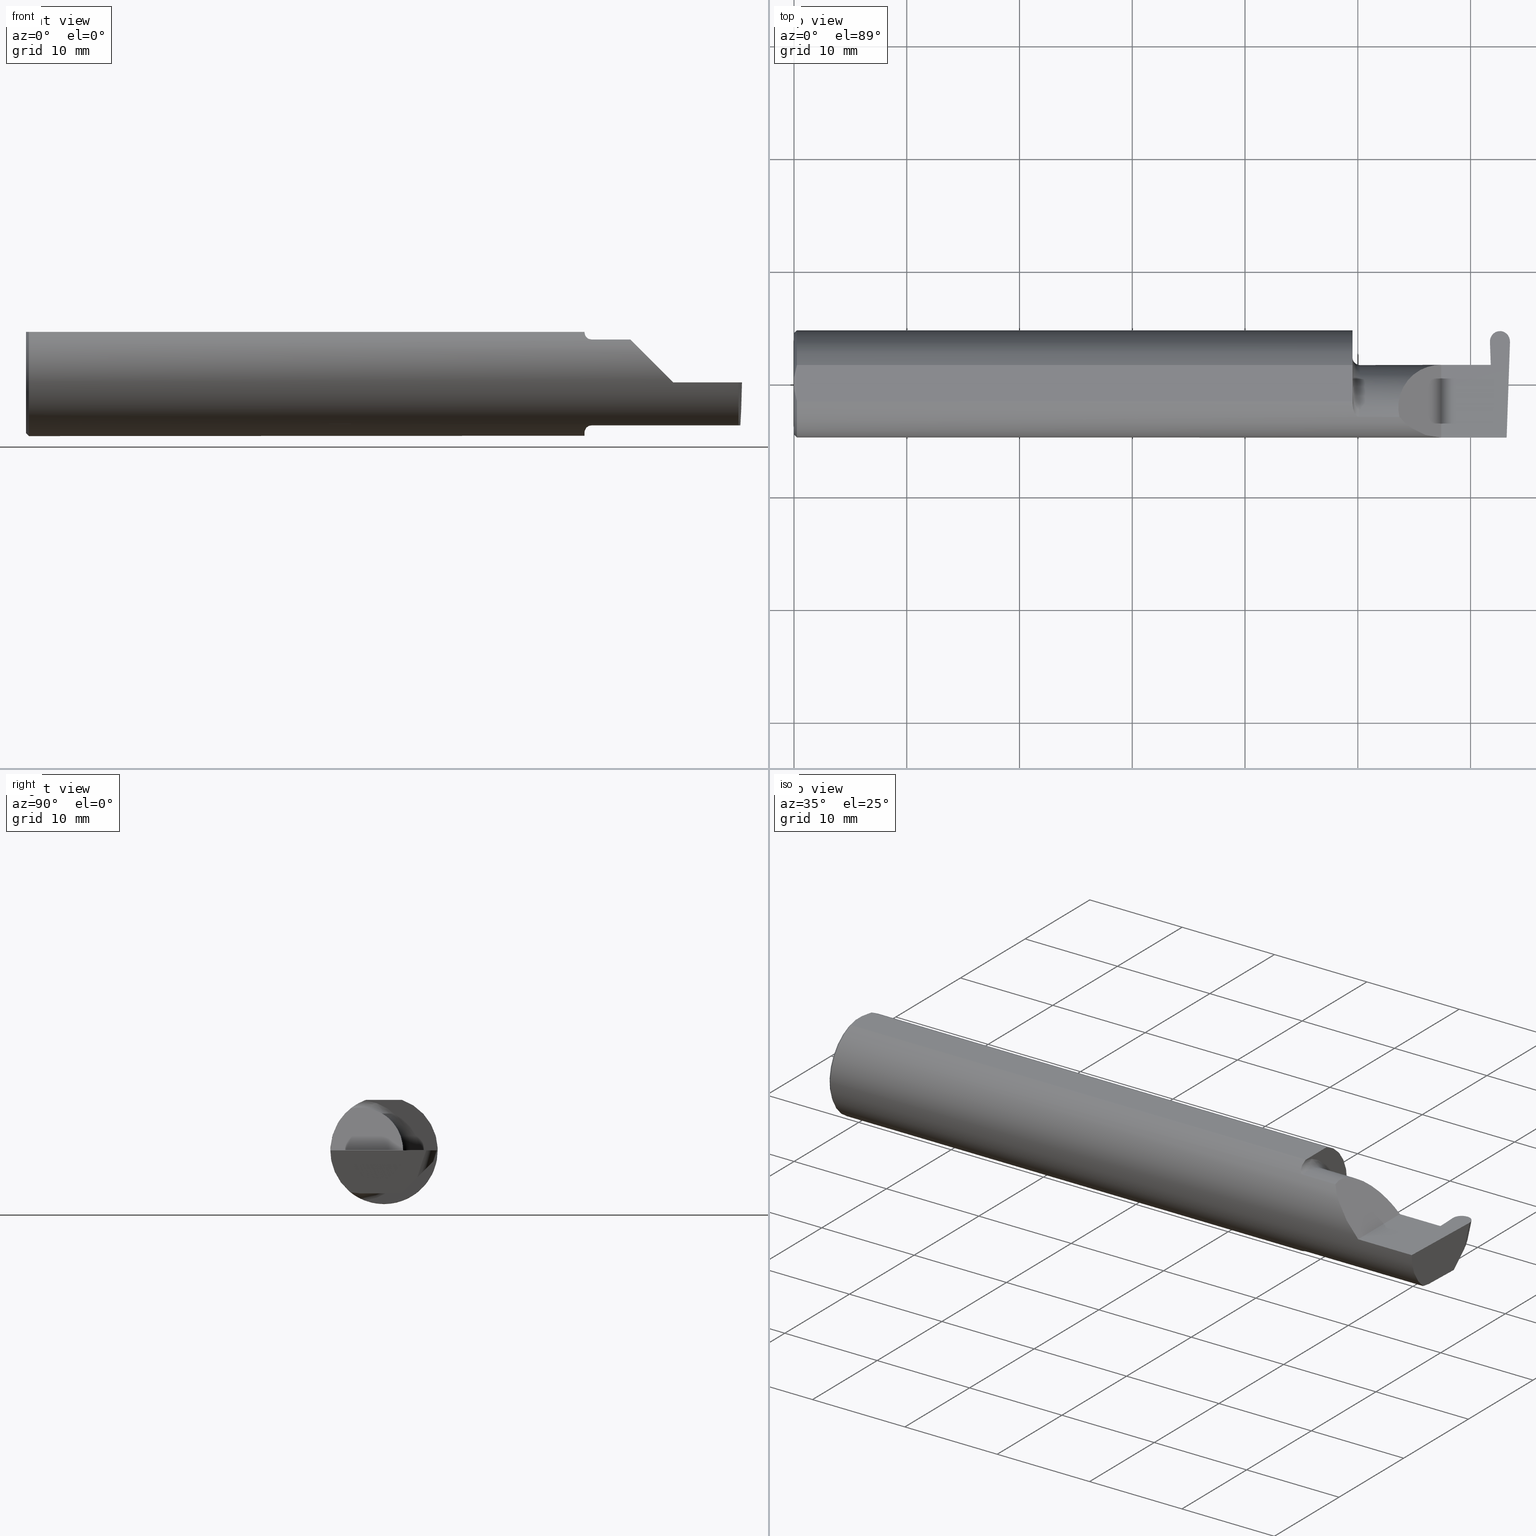
[diagram: canonical four-view strip — front | top / right | iso, engineering-drawing reading convention]
A machine part, canonical four-view strip (front | top / right | iso — engineering-drawing reading convention). The complete STEP part file that produces these views, byte-faithful:
ISO-10303-21;
HEADER;
FILE_DESCRIPTION (( 'STEP AP203' ),
    '1' );
FILE_NAME ('222176-GFR069-8.STEP',
    '2024-06-26T22:34:26',
    ( '' ),
    ( '' ),
    'SwSTEP 2.0',
    'SolidWorks 2024',
    '' );
FILE_SCHEMA (( 'CONFIG_CONTROL_DESIGN' ));
ENDSEC;

DATA;
#1 = EDGE_CURVE ( 'NONE', #362, #313, #595, .T. ) ;
#2 = CARTESIAN_POINT ( 'NONE',  ( 2.423538215936590134, 0.06658908270190941336, -0.003489949670254849888 ) ) ;
#3 = CARTESIAN_POINT ( 'NONE',  ( 2.090221225029926355, -0.01530148607434139371, 0.1697787749700724880 ) ) ;
#4 = ORIENTED_EDGE ( 'NONE', *, *, #648, .T. ) ;
#5 = CARTESIAN_POINT ( 'NONE',  ( 2.733184360054361939, -0.08335000000000006293, -0.1500000000000000500 ) ) ;
#6 = DIRECTION ( 'NONE',  ( 1.000000000000000000, 0.000000000000000000, 0.000000000000000000 ) ) ;
#7 = ORIENTED_EDGE ( 'NONE', *, *, #396, .T. ) ;
#8 = AXIS2_PLACEMENT_3D ( 'NONE', #61, #68, #385 ) ;
#9 = LENGTH_MEASURE_WITH_UNIT ( LENGTH_MEASURE( 0.02539999999999999897 ), #493 );
#10 = DIRECTION ( 'NONE',  ( 0.000000000000000000, -0.7071067811865516806, 0.7071067811865434649 ) ) ;
#11 = ADVANCED_FACE ( 'NONE', ( #236 ), #132, .F. ) ;
#12 = ORIENTED_EDGE ( 'NONE', *, *, #201, .T. ) ;
#13 =( BOUNDED_CURVE ( )  B_SPLINE_CURVE ( 3, ( #332, #488, #552, #105 ),
 .UNSPECIFIED., .F., .T. ) 
 B_SPLINE_CURVE_WITH_KNOTS ( ( 4, 4 ),
 ( 3.159045946109734437, 4.694935687864694174 ),
 .UNSPECIFIED. ) 
 CURVE ( )  GEOMETRIC_REPRESENTATION_ITEM ( )  RATIONAL_B_SPLINE_CURVE ( ( 1.000000000000000000, 0.8128932002257790446, 0.8128932002257790446, 1.000000000000000000 ) ) 
 REPRESENTATION_ITEM ( '' )  );
#14 = ADVANCED_FACE ( 'NONE', ( #344 ), #247, .T. ) ;
#15 = DIRECTION ( 'NONE',  ( 0.000000000000000000, -0.7071067811865433539, -0.7071067811865515695 ) ) ;
#16 = ORIENTED_EDGE ( 'NONE', *, *, #283, .F. ) ;
#17 = CARTESIAN_POINT ( 'NONE',  ( 2.432629151099980458, 0.1162741585162867242, -0.09402889302686344430 ) ) ;
#18 = DIRECTION ( 'NONE',  ( 1.000000000000000000, -0.000000000000000000, -0.000000000000000000 ) ) ;
#19 = CALENDAR_DATE ( 2024, 26, 6 ) ;
#20 = VECTOR ( 'NONE', #597, 39.37007874015748854 ) ;
#21 = APPROVAL ( #281, 'UNSPECIFIED' ) ;
#22 = ORIENTED_EDGE ( 'NONE', *, *, #447, .F. ) ;
#23 = EDGE_CURVE ( 'NONE', #539, #362, #72, .T. ) ;
#24 = CALENDAR_DATE ( 2024, 26, 6 ) ;
#25 = CARTESIAN_POINT ( 'NONE',  ( 2.733184360054361939, -0.08335000000000006293, -0.1500000000000000500 ) ) ;
#26 = ORIENTED_EDGE ( 'NONE', *, *, #272, .F. ) ;
#27 = APPROVAL_DATE_TIME ( #622, #21 ) ;
#28 = CARTESIAN_POINT ( 'NONE',  ( 0.000000000000000000, 0.000000000000000000, 0.000000000000000000 ) ) ;
#29 = EDGE_LOOP ( 'NONE', ( #685, #554, #479 ) ) ;
#30 = CARTESIAN_POINT ( 'NONE',  ( 2.489267684857003893, -0.08335000000000006293, -0.1500000000000000500 ) ) ;
#31 = DIRECTION ( 'NONE',  ( 0.000000000000000000, 0.000000000000000000, -1.000000000000000000 ) ) ;
#32 = AXIS2_PLACEMENT_3D ( 'NONE', #461, #626, #520 ) ;
#33 = EDGE_CURVE ( 'NONE', #284, #226, #578, .T. ) ;
#34 = LOCAL_TIME ( 15, 34, 26.00000000000000000, #137 ) ;
#35 = CARTESIAN_POINT ( 'NONE',  ( 0.000000000000000000, 0.06325108694718235836, 0.1763499999999999235 ) ) ;
#36 = CARTESIAN_POINT ( 'NONE',  ( 1.972161949849307927, -0.1172600179964061184, 0.1461167706989260351 ) ) ;
#37 = CARTESIAN_POINT ( 'NONE',  ( 2.260000000000000231, -0.1873499999999999888, 2.939152317953647352E-17 ) ) ;
#38 = CARTESIAN_POINT ( 'NONE',  ( 1.950353553376444671, -0.07868116735658677030, 0.1701139256562800572 ) ) ;
#39 = ORIENTED_EDGE ( 'NONE', *, *, #283, .T. ) ;
#40 = DIRECTION ( 'NONE',  ( 1.000000000000000000, 3.558239494867688555E-17, 0.000000000000000000 ) ) ;
#41 = DIRECTION ( 'NONE',  ( 3.558239494867688555E-17, -1.000000000000000000, 0.000000000000000000 ) ) ;
#42 = ORIENTED_EDGE ( 'NONE', *, *, #580, .F. ) ;
#43 = ADVANCED_FACE ( 'NONE', ( #436 ), #257, .F. ) ;
#44 = APPROVAL_PERSON_ORGANIZATION ( #130, #51, #670 ) ;
#45 = DIRECTION ( 'NONE',  ( -0.02739170151059973704, 0.3089010440752013587, 0.9506996579664918068 ) ) ;
#46 = CARTESIAN_POINT ( 'NONE',  ( 1.949999999999998845, 0.06655862405285710437, -0.005234924505583847532 ) ) ;
#47 = ORIENTED_EDGE ( 'NONE', *, *, #447, .T. ) ;
#48 = FACE_OUTER_BOUND ( 'NONE', #392, .T. ) ;
#49 = DIRECTION ( 'NONE',  ( -0.01299916717458325655, 0.7070470357949164564, 0.7070470357949245610 ) ) ;
#50 = EDGE_LOOP ( 'NONE', ( #175, #399, #329, #334 ) ) ;
#51 = APPROVAL ( #187, 'UNSPECIFIED' ) ;
#52 = CARTESIAN_POINT ( 'NONE',  ( 2.498896154976211204, 0.1483409487800855797, -0.06196210276306426956 ) ) ;
#53 = CARTESIAN_POINT ( 'NONE',  ( 2.432719784034706123, 0.06664999999999998703, 0.000000000000000000 ) ) ;
#54 = EDGE_CURVE ( 'NONE', #441, #572, #350, .T. ) ;
#55 = AXIS2_PLACEMENT_3D ( 'NONE', #299, #290, #124 ) ;
#56 = APPROVAL_PERSON_ORGANIZATION ( #81, #21, #522 ) ;
#57 =( CONVERSION_BASED_UNIT ( 'INCH', #9 ) LENGTH_UNIT ( ) NAMED_UNIT ( #410 ) );
#58 = CARTESIAN_POINT ( 'NONE',  ( 2.496724085642930024, 0.1068785413084647751, -0.1034245102346855322 ) ) ;
#59 = ORIENTED_EDGE ( 'NONE', *, *, #469, .F. ) ;
#60 = DIRECTION ( 'NONE',  ( -0.7071067811865509034, 0.000000000000000000, 0.7071067811865440200 ) ) ;
#61 = CARTESIAN_POINT ( 'NONE',  ( 1.949999999999999956, 0.1873499999999999055, 0.000000000000000000 ) ) ;
#62 = VERTEX_POINT ( 'NONE', #489 ) ;
#63 = EDGE_CURVE ( 'NONE', #156, #270, #97, .T. ) ;
#64 = CARTESIAN_POINT ( 'NONE',  ( 1.949999999999999956, -0.06325108694718283020, 0.1763499999999999235 ) ) ;
#65 = ORIENTED_EDGE ( 'NONE', *, *, #615, .T. ) ;
#66 = AXIS2_PLACEMENT_3D ( 'NONE', #207, #591, #41 ) ;
#67 = CC_DESIGN_SECURITY_CLASSIFICATION ( #652, ( #145 ) ) ;
#68 = DIRECTION ( 'NONE',  ( 1.000000000000000000, 3.558239494867688555E-17, 0.000000000000000000 ) ) ;
#69 = ORIENTED_EDGE ( 'NONE', *, *, #190, .T. ) ;
#70 = CALENDAR_DATE ( 2024, 26, 6 ) ;
#71 = CARTESIAN_POINT ( 'NONE',  ( 2.430949285023789930, 0.1483409487800851911, -0.06196210276306462345 ) ) ;
#72 = LINE ( 'NONE', #288, #177 ) ;
#73 = APPLICATION_PROTOCOL_DEFINITION ( 'international standard', 'config_control_design', 1994, #460 ) ;
#74 = EDGE_CURVE ( 'NONE', #76, #550, #603, .T. ) ;
#75 = CARTESIAN_POINT ( 'NONE',  ( 2.432719784034706123, 0.06664999999999998703, 0.000000000000000000 ) ) ;
#76 = VERTEX_POINT ( 'NONE', #531 ) ;
#77 = PERSON_AND_ORGANIZATION_ROLE ( 'creator' ) ;
#78 = AXIS2_PLACEMENT_3D ( 'NONE', #110, #6, #504 ) ;
#79 = DIRECTION ( 'NONE',  ( 0.000000000000000000, 0.000000000000000000, -1.000000000000000000 ) ) ;
#80 = ORIENTED_EDGE ( 'NONE', *, *, #438, .F. ) ;
#81 = PERSON_AND_ORGANIZATION ( #405, #305 ) ;
#82 = PLANE ( 'NONE',  #155 ) ;
#83 = ORIENTED_EDGE ( 'NONE', *, *, #490, .F. ) ;
#84 = EDGE_CURVE ( 'NONE', #284, #186, #486, .T. ) ;
#85 = FACE_OUTER_BOUND ( 'NONE', #182, .T. ) ;
#86 =( BOUNDED_CURVE ( )  B_SPLINE_CURVE ( 3, ( #228, #555, #52, #213 ),
 .UNSPECIFIED., .F., .T. ) 
 B_SPLINE_CURVE_WITH_KNOTS ( ( 4, 4 ),
 ( 3.149684762092791690, 4.726229945297545143 ),
 .UNSPECIFIED. ) 
 CURVE ( )  GEOMETRIC_REPRESENTATION_ITEM ( )  RATIONAL_B_SPLINE_CURVE ( ( 1.000000000000000000, 0.8033808900895229588, 0.8033808900895229588, 1.000000000000000000 ) ) 
 REPRESENTATION_ITEM ( '' )  );
#87 = VERTEX_POINT ( 'NONE', #598 ) ;
#88 = DIRECTION ( 'NONE',  ( 7.486943585141933705E-15, -0.9998476951563912696, 0.01745240643728358451 ) ) ;
#89 = DIRECTION ( 'NONE',  ( 0.9998367324388628408, 0.0003153570480505038390, 0.01806679318280284691 ) ) ;
#90 = AXIS2_PLACEMENT_3D ( 'NONE', #637, #537, #586 ) ;
#91 = CARTESIAN_POINT ( 'NONE',  ( 2.202422719999999945, -0.1172600179964006090, -0.1461167706989303927 ) ) ;
#92 = CARTESIAN_POINT ( 'NONE',  ( 0.000000000000000000, 0.000000000000000000, 0.000000000000000000 ) ) ;
#93 = MANIFOLD_SOLID_BREP ( 'Radii', #480 ) ;
#94 = ORIENTED_EDGE ( 'NONE', *, *, #689, .T. ) ;
#95 = CARTESIAN_POINT ( 'NONE',  ( 2.462749325125258348, 0.2055125706609962077, 0.06420839026650314307 ) ) ;
#96 = EDGE_CURVE ( 'NONE', #362, #62, #561, .T. ) ;
#97 = LINE ( 'NONE', #46, #227 ) ;
#98 = PLANE ( 'NONE',  #204 ) ;
#99 = VECTOR ( 'NONE', #138, 39.37007874015748854 ) ;
#100 = LOCAL_TIME ( 15, 34, 26.00000000000000000, #244 ) ;
#101 = CC_DESIGN_DATE_AND_TIME_ASSIGNMENT ( #682, #192, ( #652 ) ) ;
#102 = CARTESIAN_POINT ( 'NONE',  ( 1.952960551809340917, -0.09317341542745735672, -0.1626248379125197208 ) ) ;
#103 = DIRECTION ( 'NONE',  ( 0.000000000000000000, 0.000000000000000000, 1.000000000000000000 ) ) ;
#104 = EDGE_LOOP ( 'NONE', ( #473, #499, #108, #321 ) ) ;
#105 = CARTESIAN_POINT ( 'NONE',  ( 2.432814406597916257, 0.06655862405284602989, -0.005234924505382013322 ) ) ;
#106 = ADVANCED_FACE ( 'NONE', ( #432 ), #475, .T. ) ;
#107 = LINE ( 'NONE', #661, #315 ) ;
#108 = ORIENTED_EDGE ( 'NONE', *, *, #526, .T. ) ;
#109 = LINE ( 'NONE', #219, #686 ) ;
#110 = CARTESIAN_POINT ( 'NONE',  ( 0.000000000000000000, 0.000000000000000000, 0.000000000000000000 ) ) ;
#111 = ORIENTED_EDGE ( 'NONE', *, *, #233, .T. ) ;
#112 = VECTOR ( 'NONE', #541, 39.37007874015748143 ) ;
#113 =( BOUNDED_CURVE ( )  B_SPLINE_CURVE ( 3, ( #498, #3, #556, #388 ),
 .UNSPECIFIED., .F., .T. ) 
 B_SPLINE_CURVE_WITH_KNOTS ( ( 4, 4 ),
 ( 6.055147272130144920, 7.853981633974482790 ),
 .UNSPECIFIED. ) 
 CURVE ( )  GEOMETRIC_REPRESENTATION_ITEM ( )  RATIONAL_B_SPLINE_CURVE ( ( 1.000000000000000000, 0.7480442670255273985, 0.7480442670255273985, 1.000000000000000000 ) ) 
 REPRESENTATION_ITEM ( '' )  );
#114 = CARTESIAN_POINT ( 'NONE',  ( 2.486211292289216335, 0.1846500000000000641, 5.931370957970135947E-18 ) ) ;
#115 = ORIENTED_EDGE ( 'NONE', *, *, #223, .T. ) ;
#116 = CARTESIAN_POINT ( 'NONE',  ( 2.487246082891137355, -0.1873500000000000165, -0.05781030015605123640 ) ) ;
#117 = DIRECTION ( 'NONE',  ( -0.000000000000000000, 1.000000000000000000, -0.000000000000000000 ) ) ;
#118 = ADVANCED_FACE ( 'NONE', ( #151 ), #167, .F. ) ;
#119 = EDGE_LOOP ( 'NONE', ( #599, #457, #59, #465, #12 ) ) ;
#120 = CARTESIAN_POINT ( 'NONE',  ( 0.009999999999999346217, -0.06325108694718235836, 0.1763499999999999235 ) ) ;
#121 = VERTEX_POINT ( 'NONE', #200 ) ;
#122 = AXIS2_PLACEMENT_3D ( 'NONE', #538, #205, #430 ) ;
#123 = DIRECTION ( 'NONE',  ( 1.000000000000000000, 0.000000000000000000, 0.000000000000000000 ) ) ;
#124 = DIRECTION ( 'NONE',  ( 0.000000000000000000, 0.9510565162951533091, -0.3090169943749482284 ) ) ;
#125 = EDGE_LOOP ( 'NONE', ( #166, #259, #196, #69, #397, #557 ) ) ;
#126 = PERSON_AND_ORGANIZATION_ROLE ( 'classification_officer' ) ;
#127 = DIRECTION ( 'NONE',  ( 0.000000000000000000, 0.000000000000000000, -1.000000000000000000 ) ) ;
#128 = ADVANCED_FACE ( 'NONE', ( #649 ), #98, .F. ) ;
#129 = CARTESIAN_POINT ( 'NONE',  ( 2.429866808131219802, 0.1483485405823075642, 0.000000000000000000 ) ) ;
#130 = PERSON_AND_ORGANIZATION ( #405, #305 ) ;
#131 = DIRECTION ( 'NONE',  ( -0.01806954526206906372, 0.01744955702544845680, 0.9996844524616943506 ) ) ;
#132 = PLANE ( 'NONE',  #492 ) ;
#133 = AXIS2_PLACEMENT_3D ( 'NONE', #509, #225, #445 ) ;
#134 = FACE_OUTER_BOUND ( 'NONE', #543, .T. ) ;
#135 = ORIENTED_EDGE ( 'NONE', *, *, #160, .T. ) ;
#136 = ADVANCED_FACE ( 'NONE', ( #370 ), #587, .T. ) ;
#137 = COORDINATED_UNIVERSAL_TIME_OFFSET ( 8, 0, .BEHIND. ) ;
#138 = DIRECTION ( 'NONE',  ( -0.03489949670249273966, 0.9993908270190959842, -0.000000000000000000 ) ) ;
#139 = ORIENTED_EDGE ( 'NONE', *, *, #252, .T. ) ;
#140 = CARTESIAN_POINT ( 'NONE',  ( 0.009999999999999346217, -0.06325108694718235836, 0.1763499999999999235 ) ) ;
#141 = DIRECTION ( 'NONE',  ( 1.000000000000000000, 0.000000000000000000, 0.000000000000000000 ) ) ;
#142 = LINE ( 'NONE', #544, #518 ) ;
#143 = VECTOR ( 'NONE', #418, 39.37007874015748143 ) ;
#144 = CARTESIAN_POINT ( 'NONE',  ( 0.000000000000000000, 0.01880691362239451242, 0.1763499999999999235 ) ) ;
#145 = PRODUCT_DEFINITION_FORMATION_WITH_SPECIFIED_SOURCE ( 'ANY', '', #532, .NOT_KNOWN. ) ;
#146 = ORIENTED_EDGE ( 'NONE', *, *, #523, .T. ) ;
#147 = EDGE_CURVE ( 'NONE', #313, #572, #645, .T. ) ;
#148 = CARTESIAN_POINT ( 'NONE',  ( 2.429907053872649048, 0.1469717285548437502, 0.0004485129120875279321 ) ) ;
#149 = CARTESIAN_POINT ( 'NONE',  ( 2.435723926987983567, -2.372237094640325061, -0.1236817301709687428 ) ) ;
#150 = CARTESIAN_POINT ( 'NONE',  ( 1.949999999999999956, 0.000000000000000000, 0.000000000000000000 ) ) ;
#151 = FACE_OUTER_BOUND ( 'NONE', #104, .T. ) ;
#152 = ORIENTED_EDGE ( 'NONE', *, *, #74, .F. ) ;
#153 = DIRECTION ( 'NONE',  ( 0.000000000000000000, 1.000000000000000000, 0.000000000000000000 ) ) ;
#154 = CARTESIAN_POINT ( 'NONE',  ( 1.949999999999999956, 0.06665000000000001479, 6.735557395310446214E-17 ) ) ;
#155 = AXIS2_PLACEMENT_3D ( 'NONE', #343, #467, #403 ) ;
#156 = VERTEX_POINT ( 'NONE', #309 ) ;
#157 = EDGE_CURVE ( 'NONE', #535, #218, #483, .T. ) ;
#158 = CARTESIAN_POINT ( 'NONE',  ( 2.464922720000000567, 0.1781008794198421508, -0.02015612059252750929 ) ) ;
#159 = DIRECTION ( 'NONE',  ( 0.7071067811865426878, 0.000000000000000000, -0.7071067811865523467 ) ) ;
#160 = EDGE_CURVE ( 'NONE', #454, #266, #644, .T. ) ;
#161 = DIRECTION ( 'NONE',  ( -1.000000000000000000, -0.000000000000000000, -0.000000000000000000 ) ) ;
#162 = LINE ( 'NONE', #707, #280 ) ;
#163 = VERTEX_POINT ( 'NONE', #306 ) ;
#164 = CARTESIAN_POINT ( 'NONE',  ( 2.488151344270815191, -0.1172600179964006090, -0.1461167706989303927 ) ) ;
#165 = CARTESIAN_POINT ( 'NONE',  ( -0.001039370078740541395, 0.1723030515431495657, -0.03799999999999999906 ) ) ;
#166 = ORIENTED_EDGE ( 'NONE', *, *, #469, .T. ) ;
#167 = TOROIDAL_SURFACE ( 'NONE', #66, 0.1749999999999999889, 0.02499999999999993894 ) ;
#168 = CIRCLE ( 'NONE', #481, 0.1873499999999999888 ) ;
#169 = DIRECTION ( 'NONE',  ( -0.7071067811865441310, 0.000000000000000000, -0.7071067811865510144 ) ) ;
#170 = LINE ( 'NONE', #220, #651 ) ;
#171 = VERTEX_POINT ( 'NONE', #172 ) ;
#172 = CARTESIAN_POINT ( 'NONE',  ( 2.432719784034706123, 0.06664999999999998703, 0.000000000000000000 ) ) ;
#173 = VERTEX_POINT ( 'NONE', #64 ) ;
#174 = DIRECTION ( 'NONE',  ( 1.000000000000000000, 0.000000000000000000, 0.000000000000000000 ) ) ;
#175 = ORIENTED_EDGE ( 'NONE', *, *, #201, .F. ) ;
#176 = B_SPLINE_CURVE_WITH_KNOTS ( 'NONE', 3,
 ( #691, #197, #372, #643, #250, #311, #361, #102, #593, #365, #260, #199 ),
 .UNSPECIFIED., .F., .F.,
 ( 4, 2, 2, 2, 2, 4 ),
 ( 1.967976973726874814E-07, 0.0002120314145722334794, 0.0004238660314470942339, 0.0008475352651968040335, 0.001271204498946513833, 0.001694873732696223524 ),
 .UNSPECIFIED. ) ;
#177 = VECTOR ( 'NONE', #414, 39.37007874015748143 ) ;
#178 = LOCAL_TIME ( 15, 34, 26.00000000000000000, #466 ) ;
#179 = EDGE_CURVE ( 'NONE', #441, #173, #107, .T. ) ;
#180 = PERSON_AND_ORGANIZATION ( #405, #305 ) ;
#181 = CYLINDRICAL_SURFACE ( 'NONE', #55, 0.03499999999999998945 ) ;
#182 = EDGE_LOOP ( 'NONE', ( #662, #135, #212, #602, #341, #26, #80, #642, #115 ) ) ;
#183 = APPROVAL_DATE_TIME ( #352, #51 ) ;
#184 = DIRECTION ( 'NONE',  ( 0.000000000000000000, 0.000000000000000000, 1.000000000000000000 ) ) ;
#185 =( BOUNDED_CURVE ( )  B_SPLINE_CURVE ( 3, ( #512, #631, #674, #30 ),
 .UNSPECIFIED., .F., .F. ) 
 B_SPLINE_CURVE_WITH_KNOTS ( ( 4, 4 ),
 ( 0.8789888184544304428, 1.107026853503873642 ),
 .UNSPECIFIED. ) 
 CURVE ( )  GEOMETRIC_REPRESENTATION_ITEM ( )  RATIONAL_B_SPLINE_CURVE ( ( 1.000000000000000000, 0.9956712472009929815, 0.9956712472009929815, 1.000000000000000000 ) ) 
 REPRESENTATION_ITEM ( '' )  );
#186 = VERTEX_POINT ( 'NONE', #395 ) ;
#187 = APPROVAL_STATUS ( 'not_yet_approved' ) ;
#188 = FACE_OUTER_BOUND ( 'NONE', #525, .T. ) ;
#189 = DIRECTION ( 'NONE',  ( 0.000000000000000000, 0.000000000000000000, -1.000000000000000000 ) ) ;
#190 = EDGE_CURVE ( 'NONE', #239, #226, #553, .T. ) ;
#191 = ORIENTED_EDGE ( 'NONE', *, *, #243, .T. ) ;
#192 = DATE_TIME_ROLE ( 'classification_date' ) ;
#193 = VECTOR ( 'NONE', #320, 39.37007874015748143 ) ;
#194 = ADVANCED_FACE ( 'NONE', ( #549 ), #671, .T. ) ;
#195 = DIRECTION ( 'NONE',  ( -3.558239494867688555E-17, 1.000000000000000000, 0.000000000000000000 ) ) ;
#196 = ORIENTED_EDGE ( 'NONE', *, *, #695, .T. ) ;
#197 = CARTESIAN_POINT ( 'NONE',  ( 1.972174967710399685, -0.1172600179964005812, -0.1461167706989304482 ) ) ;
#198 = ORIENTED_EDGE ( 'NONE', *, *, #307, .T. ) ;
#199 = CARTESIAN_POINT ( 'NONE',  ( 1.949999999999999956, -0.06851976604679065053, -0.1743704796142198643 ) ) ;
#200 = CARTESIAN_POINT ( 'NONE',  ( 2.260000000000000231, -0.1873499999999999888, 2.939152317953647352E-17 ) ) ;
#201 = EDGE_CURVE ( 'NONE', #156, #171, #613, .T. ) ;
#202 = EDGE_CURVE ( 'NONE', #218, #171, #170, .T. ) ;
#203 = LINE ( 'NONE', #91, #293 ) ;
#204 = AXIS2_PLACEMENT_3D ( 'NONE', #638, #702, #366 ) ;
#205 = DIRECTION ( 'NONE',  ( -1.000000000000000000, -3.558239494867688555E-17, -0.000000000000000000 ) ) ;
#206 = CARTESIAN_POINT ( 'NONE',  ( 2.150065971957464850, -0.1623470442677540371, 0.1099340280425340488 ) ) ;
#207 = CARTESIAN_POINT ( 'NONE',  ( 1.974999999999999867, -0.08334999999999999354, 0.000000000000000000 ) ) ;
#208 = ORIENTED_EDGE ( 'NONE', *, *, #54, .T. ) ;
#209 = CARTESIAN_POINT ( 'NONE',  ( 2.464922720000000567, 0.1810028137283835048, -0.01122488514516581902 ) ) ;
#210 = CARTESIAN_POINT ( 'NONE',  ( 0.009999999999999346217, 0.06325108694718235836, 0.1763499999999999235 ) ) ;
#211 = ADVANCED_FACE ( 'NONE', ( #656 ), #267, .F. ) ;
#212 = ORIENTED_EDGE ( 'NONE', *, *, #286, .F. ) ;
#213 = CARTESIAN_POINT ( 'NONE',  ( 2.497216288900020675, 0.1162741585162865993, -0.09402889302686361084 ) ) ;
#214 = CARTESIAN_POINT ( 'NONE',  ( 1.965004157323697376, -0.1137044537483316159, 0.1489098419202428691 ) ) ;
#215 = EDGE_LOOP ( 'NONE', ( #42, #700, #614, #230, #627, #152, #22, #484, #208, #7, #83, #371, #419 ) ) ;
#216 =( GEOMETRIC_REPRESENTATION_CONTEXT ( 3 ) GLOBAL_UNCERTAINTY_ASSIGNED_CONTEXT ( ( #579 ) ) GLOBAL_UNIT_ASSIGNED_CONTEXT ( ( #57, #382, #612 ) ) REPRESENTATION_CONTEXT ( 'NONE', 'WORKASPACE' ) );
#217 = DIRECTION ( 'NONE',  ( 1.000000000000000000, -0.000000000000000000, -0.000000000000000000 ) ) ;
#218 = VERTEX_POINT ( 'NONE', #381 ) ;
#219 = CARTESIAN_POINT ( 'NONE',  ( 2.435477586440800035, -0.08344389926001465063, -0.1500000000000000500 ) ) ;
#220 = CARTESIAN_POINT ( 'NONE',  ( 2.432719784034706123, 0.06664999999999998703, 0.000000000000000000 ) ) ;
#221 = VERTEX_POINT ( 'NONE', #282 ) ;
#222 = CC_DESIGN_DATE_AND_TIME_ASSIGNMENT ( #342, #455, ( #325 ) ) ;
#223 = EDGE_CURVE ( 'NONE', #298, #680, #697, .T. ) ;
#224 = DIRECTION ( 'NONE',  ( 1.000000000000000000, 3.558239494867688555E-17, 0.000000000000000000 ) ) ;
#225 = DIRECTION ( 'NONE',  ( -1.000000000000000000, -3.558239494867688555E-17, -0.000000000000000000 ) ) ;
#226 = VERTEX_POINT ( 'NONE', #231 ) ;
#227 = VECTOR ( 'NONE', #316, 39.37007874015748143 ) ;
#228 = CARTESIAN_POINT ( 'NONE',  ( 2.464922720000000123, 0.1722898021506072963, -0.03801324939254225460 ) ) ;
#229 = LINE ( 'NONE', #610, #416 ) ;
#230 = ORIENTED_EDGE ( 'NONE', *, *, #545, .T. ) ;
#231 = CARTESIAN_POINT ( 'NONE',  ( 2.494284159956727809, 0.06030305154315079158, -0.1500000000000000500 ) ) ;
#232 = VERTEX_POINT ( 'NONE', #336 ) ;
#233 = EDGE_CURVE ( 'NONE', #441, #539, #536, .T. ) ;
#234 = PERSON_AND_ORGANIZATION_ROLE ( 'creator' ) ;
#235 = DIRECTION ( 'NONE',  ( 0.000000000000000000, 0.000000000000000000, -1.000000000000000000 ) ) ;
#236 = FACE_OUTER_BOUND ( 'NONE', #119, .T. ) ;
#237 = AXIS2_PLACEMENT_3D ( 'NONE', #150, #40, #153 ) ;
#238 = FACE_OUTER_BOUND ( 'NONE', #386, .T. ) ;
#239 = VERTEX_POINT ( 'NONE', #327 ) ;
#240 = CARTESIAN_POINT ( 'NONE',  ( 0.000000000000000000, 0.000000000000000000, 0.000000000000000000 ) ) ;
#241 = DIRECTION ( 'NONE',  ( 1.000000000000000000, 0.000000000000000000, 0.000000000000000000 ) ) ;
#242 = EDGE_LOOP ( 'NONE', ( #434, #468, #291 ) ) ;
#243 = EDGE_CURVE ( 'NONE', #454, #680, #162, .T. ) ;
#244 = COORDINATED_UNIVERSAL_TIME_OFFSET ( 8, 0, .BEHIND. ) ;
#245 = CARTESIAN_POINT ( 'NONE',  ( 2.429866808131219802, 0.1483485405823075642, 0.000000000000000000 ) ) ;
#246 = ORIENTED_EDGE ( 'NONE', *, *, #1, .F. ) ;
#247 = CONICAL_SURFACE ( 'NONE', #292, 0.1773500000000005072, 0.7853981633974551624 ) ;
#248 = APPLICATION_CONTEXT ( 'configuration controlled 3d designs of mechanical parts and assemblies' ) ;
#249 = EDGE_LOOP ( 'NONE', ( #608, #246, #337, #464 ) ) ;
#250 = CARTESIAN_POINT ( 'NONE',  ( 1.963203859946833552, -0.1120371980050636901, -0.1501764597936560142 ) ) ;
#251 = CARTESIAN_POINT ( 'NONE',  ( 0.005155213631852355663, 0.04890080824240217866, 0.1763499999999999235 ) ) ;
#252 = EDGE_CURVE ( 'NONE', #681, #535, #113, .T. ) ;
#253 = CARTESIAN_POINT ( 'NONE',  ( 2.113883229301068312, -0.1172600179964003175, 0.1461167706989304760 ) ) ;
#254 = DIRECTION ( 'NONE',  ( 0.01806679408117481400, 0.000000000000000000, -0.9998367821557817559 ) ) ;
#255 = LINE ( 'NONE', #533, #20 ) ;
#256 = VECTOR ( 'NONE', #333, 39.37007874015748143 ) ;
#257 = PLANE ( 'NONE',  #505 ) ;
#258 = VECTOR ( 'NONE', #161, 39.37007874015748143 ) ;
#259 = ORIENTED_EDGE ( 'NONE', *, *, #393, .T. ) ;
#260 = CARTESIAN_POINT ( 'NONE',  ( 1.949999999999999512, -0.07368234487347190276, -0.1723418180300748115 ) ) ;
#261 = ADVANCED_FACE ( 'NONE', ( #453 ), #443, .F. ) ;
#262 = CARTESIAN_POINT ( 'NONE',  ( 1.974999999999999867, -0.1172600179964006506, 0.1461167706989304205 ) ) ;
#263 = EDGE_CURVE ( 'NONE', #76, #318, #446, .T. ) ;
#264 = DIRECTION ( 'NONE',  ( -0.02739170151060053154, -0.3089010440752013587, -0.9506996579664918068 ) ) ;
#265 = CARTESIAN_POINT ( 'NONE',  ( 2.464599306921210875, 0.1846500000000000363, 0.000000000000000000 ) ) ;
#266 = VERTEX_POINT ( 'NONE', #665 ) ;
#267 = PLANE ( 'NONE',  #585 ) ;
#268 = CONICAL_SURFACE ( 'NONE', #617, 0.1773500000000005072, 0.7853981633974551624 ) ;
#269 = VECTOR ( 'NONE', #45, 39.37007874015748143 ) ;
#270 = VERTEX_POINT ( 'NONE', #391 ) ;
#271 = CARTESIAN_POINT ( 'NONE',  ( 2.499925463505881851, 0.1468259978756916440, 0.000000000000000000 ) ) ;
#272 = EDGE_CURVE ( 'NONE', #121, #535, #229, .T. ) ;
#273 = VERTEX_POINT ( 'NONE', #451 ) ;
#274 = CARTESIAN_POINT ( 'NONE',  ( 2.487208827712860337, -0.1623470442677540926, -0.1099340280425339100 ) ) ;
#275 = CARTESIAN_POINT ( 'NONE',  ( 2.465246133078789814, 0.1846500000000000363, 0.000000000000000000 ) ) ;
#276 = VERTEX_POINT ( 'NONE', #17 ) ;
#277 = LINE ( 'NONE', #380, #401 ) ;
#278 = DIRECTION ( 'NONE',  ( 1.000000000000000000, 7.488084056613103845E-15, -0.000000000000000000 ) ) ;
#279 = ORIENTED_EDGE ( 'NONE', *, *, #307, .F. ) ;
#280 = VECTOR ( 'NONE', #217, 39.37007874015748143 ) ;
#281 = APPROVAL_STATUS ( 'not_yet_approved' ) ;
#282 = CARTESIAN_POINT ( 'NONE',  ( 1.974999999999999867, -0.1172600179964006090, -0.1461167706989303927 ) ) ;
#283 = EDGE_CURVE ( 'NONE', #163, #604, #185, .T. ) ;
#284 = VERTEX_POINT ( 'NONE', #353 ) ;
#285 = SHAPE_DEFINITION_REPRESENTATION ( #368, #425 ) ;
#286 = EDGE_CURVE ( 'NONE', #171, #266, #524, .T. ) ;
#287 = DIRECTION ( 'NONE',  ( -1.000000000000000000, -0.000000000000000000, -0.000000000000000000 ) ) ;
#288 = CARTESIAN_POINT ( 'NONE',  ( 0.000000000000000000, 0.1873499999999998500, 0.1763499999999999235 ) ) ;
#289 = MECHANICAL_CONTEXT ( 'NONE', #460, 'mechanical' ) ;
#290 = DIRECTION ( 'NONE',  ( 0.02739170151059974051, -0.3089010440752013587, -0.9506996579664920288 ) ) ;
#291 = ORIENTED_EDGE ( 'NONE', *, *, #422, .T. ) ;
#292 = AXIS2_PLACEMENT_3D ( 'NONE', #349, #141, #189 ) ;
#293 = VECTOR ( 'NONE', #427, 39.37007874015748143 ) ;
#294 = PERSON_AND_ORGANIZATION ( #405, #305 ) ;
#295 = CARTESIAN_POINT ( 'NONE',  ( 2.499978631868781331, 0.1483485405823076198, 0.000000000000000000 ) ) ;
#296 = ORIENTED_EDGE ( 'NONE', *, *, #658, .T. ) ;
#297 = CARTESIAN_POINT ( 'NONE',  ( 1.949999999999999956, 0.1873499999999998222, 0.1763499999999999235 ) ) ;
#298 = VERTEX_POINT ( 'NONE', #577 ) ;
#299 = CARTESIAN_POINT ( 'NONE',  ( 2.464880405396090435, 0.1481930249017474333, 0.001059347137392452646 ) ) ;
#300 = ORIENTED_EDGE ( 'NONE', *, *, #233, .F. ) ;
#301 =( BOUNDED_CURVE ( )  B_SPLINE_CURVE ( 3, ( #527, #71, #616, #676 ),
 .UNSPECIFIED., .F., .T. ) 
 B_SPLINE_CURVE_WITH_KNOTS ( ( 4, 4 ),
 ( 1.556955361882043309, 3.133500545086777223 ),
 .UNSPECIFIED. ) 
 CURVE ( )  GEOMETRIC_REPRESENTATION_ITEM ( )  RATIONAL_B_SPLINE_CURVE ( ( 1.000000000000000000, 0.8033808900895277327, 0.8033808900895277327, 1.000000000000000000 ) ) 
 REPRESENTATION_ITEM ( '' )  );
#302 = VECTOR ( 'NONE', #131, 39.37007874015748854 ) ;
#303 = VECTOR ( 'NONE', #559, 39.37007874015748854 ) ;
#304 = DIRECTION ( 'NONE',  ( 0.000000000000000000, -0.01745240643728358451, -0.9998476951563912696 ) ) ;
#305 = ORGANIZATION ( 'UNSPECIFIED', 'UNSPECIFIED', '' ) ;
#306 = CARTESIAN_POINT ( 'NONE',  ( 2.488151344270815191, -0.1172600179964006090, -0.1461167706989303927 ) ) ;
#307 = EDGE_CURVE ( 'NONE', #239, #298, #358, .T. ) ;
#308 = CARTESIAN_POINT ( 'NONE',  ( 2.464599306921210875, 0.1846500000000000363, 0.000000000000000000 ) ) ;
#309 = CARTESIAN_POINT ( 'NONE',  ( 2.432814406597916257, 0.06655862405284602989, -0.005234924505382013322 ) ) ;
#310 = ORIENTED_EDGE ( 'NONE', *, *, #23, .F. ) ;
#311 = CARTESIAN_POINT ( 'NONE',  ( 1.958439486659306228, -0.1064616213911156600, -0.1542305641651501857 ) ) ;
#312 = CARTESIAN_POINT ( 'NONE',  ( 1.949999999999999956, -0.07367581953296704900, 0.1723443821957854338 ) ) ;
#313 = VERTEX_POINT ( 'NONE', #348 ) ;
#314 = CYLINDRICAL_SURFACE ( 'NONE', #540, 0.03500000000000000333 ) ;
#315 = VECTOR ( 'NONE', #330, 39.37007874015748143 ) ;
#316 = DIRECTION ( 'NONE',  ( -1.000000000000000000, -3.558239494867688555E-17, -0.000000000000000000 ) ) ;
#317 = CC_DESIGN_APPROVAL ( #433, ( #652 ) ) ;
#318 = VERTEX_POINT ( 'NONE', #571 ) ;
#319 = CARTESIAN_POINT ( 'NONE',  ( 2.260000000000000231, 0.06665000000000001479, 6.735557395310446214E-17 ) ) ;
#320 = DIRECTION ( 'NONE',  ( 1.000000000000000000, 3.558239494867688555E-17, 0.000000000000000000 ) ) ;
#321 = ORIENTED_EDGE ( 'NONE', *, *, #263, .F. ) ;
#322 = CARTESIAN_POINT ( 'NONE',  ( 2.423507757287544528, 0.06655862405286415429, -0.005234924505382275266 ) ) ;
#323 = CARTESIAN_POINT ( 'NONE',  ( 2.443634147710784355, 0.1846500000000000641, 6.874166512331093267E-18 ) ) ;
#324 = ORIENTED_EDGE ( 'NONE', *, *, #636, .F. ) ;
#325 = PRODUCT_DEFINITION ( 'UNKNOWN', '', #145, #415 ) ;
#326 = DIRECTION ( 'NONE',  ( -0.0003154085283454282121, 0.9999999502587288980, 0.000000000000000000 ) ) ;
#327 = CARTESIAN_POINT ( 'NONE',  ( 2.497216288900020675, 0.1162741585162865993, -0.09402889302686361084 ) ) ;
#328 = ADVANCED_FACE ( 'NONE', ( #238 ), #581, .F. ) ;
#329 = ORIENTED_EDGE ( 'NONE', *, *, #669, .T. ) ;
#330 = DIRECTION ( 'NONE',  ( 1.000000000000000000, 0.000000000000000000, 0.000000000000000000 ) ) ;
#331 = ORIENTED_EDGE ( 'NONE', *, *, #689, .F. ) ;
#332 = CARTESIAN_POINT ( 'NONE',  ( 2.435477556824171330, -0.08334999999999999354, -0.1500000000000000500 ) ) ;
#333 = DIRECTION ( 'NONE',  ( -0.03701744261649894674, -0.7066221440565398915, -0.7066221440565479961 ) ) ;
#334 = ORIENTED_EDGE ( 'NONE', *, *, #202, .T. ) ;
#335 = ADVANCED_FACE ( 'NONE', ( #85 ), #82, .F. ) ;
#336 = CARTESIAN_POINT ( 'NONE',  ( 2.435477556824171330, -0.08334999999999999354, -0.1500000000000000500 ) ) ;
#337 = ORIENTED_EDGE ( 'NONE', *, *, #96, .T. ) ;
#338 = CIRCLE ( 'NONE', #32, 0.1500000000000000500 ) ;
#339 = EDGE_CURVE ( 'NONE', #550, #221, #338, .T. ) ;
#340 = CARTESIAN_POINT ( 'NONE',  ( 0.000000000000000000, 0.01880691362239451242, 0.1763499999999999235 ) ) ;
#341 = ORIENTED_EDGE ( 'NONE', *, *, #157, .F. ) ;
#342 = DATE_AND_TIME ( #564, #100 ) ;
#343 = CARTESIAN_POINT ( 'NONE',  ( 2.500000000000000000, -0.2500000000000000555, 0.000000000000000000 ) ) ;
#344 = FACE_OUTER_BOUND ( 'NONE', #249, .T. ) ;
#345 = DIRECTION ( 'NONE',  ( 0.000000000000000000, 0.000000000000000000, 1.000000000000000000 ) ) ;
#346 = CC_DESIGN_PERSON_AND_ORGANIZATION_ASSIGNMENT ( #673, #77, ( #325 ) ) ;
#347 = EDGE_CURVE ( 'NONE', #173, #273, #620, .T. ) ;
#348 = CARTESIAN_POINT ( 'NONE',  ( 0.000000000000000000, 0.000000000000000000, -0.1773500000000005072 ) ) ;
#349 = CARTESIAN_POINT ( 'NONE',  ( 0.000000000000000000, 0.000000000000000000, 0.000000000000000000 ) ) ;
#350 = CIRCLE ( 'NONE', #705, 0.1873499999999999888 ) ;
#351 = VECTOR ( 'NONE', #590, 39.37007874015748854 ) ;
#352 = DATE_AND_TIME ( #70, #494 ) ;
#353 = CARTESIAN_POINT ( 'NONE',  ( 2.435432247424337948, 0.06030305154315079852, -0.1500000000000000222 ) ) ;
#354 = CARTESIAN_POINT ( 'NONE',  ( 0.000000000000000000, 0.000000000000000000, 0.000000000000000000 ) ) ;
#355 =( BOUNDED_CURVE ( )  B_SPLINE_CURVE ( 3, ( #164, #274, #116, #706 ),
 .UNSPECIFIED., .F., .T. ) 
 B_SPLINE_CURVE_WITH_KNOTS ( ( 4, 4 ),
 ( 5.852427379562161747, 6.746954780470609592 ),
 .UNSPECIFIED. ) 
 CURVE ( )  GEOMETRIC_REPRESENTATION_ITEM ( )  RATIONAL_B_SPLINE_CURVE ( ( 1.000000000000000000, 0.9344226172588802060, 0.9344226172588802060, 1.000000000000000000 ) ) 
 REPRESENTATION_ITEM ( '' )  );
#356 = CC_DESIGN_PERSON_AND_ORGANIZATION_ASSIGNMENT ( #576, #568, ( #145 ) ) ;
#357 = COORDINATED_UNIVERSAL_TIME_OFFSET ( 8, 0, .BEHIND. ) ;
#358 = LINE ( 'NONE', #516, #377 ) ;
#359 = ORIENTED_EDGE ( 'NONE', *, *, #596, .T. ) ;
#360 = ADVANCED_FACE ( 'NONE', ( #188 ), #408, .F. ) ;
#361 = CARTESIAN_POINT ( 'NONE',  ( 1.956304331342286984, -0.1022198306720689814, -0.1570962426853818594 ) ) ;
#362 = VERTEX_POINT ( 'NONE', #340 ) ;
#363 = CIRCLE ( 'NONE', #458, 0.1773500000000005072 ) ;
#364 = AXIS2_PLACEMENT_3D ( 'NONE', #653, #169, #60 ) ;
#365 = CARTESIAN_POINT ( 'NONE',  ( 1.950358271039143832, -0.07873626113568077400, -0.1700887912276895508 ) ) ;
#366 = DIRECTION ( 'NONE',  ( 0.000000000000000000, -0.3090169943749481729, -0.9510565162951533091 ) ) ;
#367 = ORIENTED_EDGE ( 'NONE', *, *, #339, .F. ) ;
#368 = PRODUCT_DEFINITION_SHAPE ( 'NONE', 'NONE',  #325 ) ;
#369 = CARTESIAN_POINT ( 'NONE',  ( 2.202189699843948301, -0.1873500000000000443, 0.05781030015605120170 ) ) ;
#370 = FACE_OUTER_BOUND ( 'NONE', #379, .T. ) ;
#371 = ORIENTED_EDGE ( 'NONE', *, *, #660, .F. ) ;
#372 = CARTESIAN_POINT ( 'NONE',  ( 1.969511795768554174, -0.1163687266324233971, -0.1468371510166789906 ) ) ;
#373 = ADVANCED_FACE ( 'NONE', ( #134 ), #268, .T. ) ;
#374 = DIRECTION ( 'NONE',  ( -1.000000000000000000, -0.000000000000000000, -0.000000000000000000 ) ) ;
#375 = ORIENTED_EDGE ( 'NONE', *, *, #223, .F. ) ;
#376 = LINE ( 'NONE', #35, #112 ) ;
#377 = VECTOR ( 'NONE', #472, 39.37007874015748854 ) ;
#378 = CARTESIAN_POINT ( 'NONE',  ( 1.958475602106621194, -0.1064978748893405658, 0.1542035505680384166 ) ) ;
#379 = EDGE_LOOP ( 'NONE', ( #703, #367, #4, #139, #560, #487, #546, #502, #331, #16 ) ) ;
#380 = CARTESIAN_POINT ( 'NONE',  ( 2.202422719999999945, -0.1172600179964006090, 0.1461167706989303927 ) ) ;
#381 = CARTESIAN_POINT ( 'NONE',  ( 2.423599133234680458, 0.06664999999999991764, 0.000000000000000000 ) ) ;
#382 =( NAMED_UNIT ( * ) PLANE_ANGLE_UNIT ( ) SI_UNIT ( $, .RADIAN. ) );
#383 = EDGE_CURVE ( 'NONE', #186, #156, #569, .T. ) ;
#384 =( BOUNDED_CURVE ( )  B_SPLINE_CURVE ( 3, ( #394, #158, #562, #659 ),
 .UNSPECIFIED., .F., .T. ) 
 B_SPLINE_CURVE_WITH_KNOTS ( ( 4, 4 ),
 ( 4.712388980384687009, 4.734436951798667970 ),
 .UNSPECIFIED. ) 
 CURVE ( )  GEOMETRIC_REPRESENTATION_ITEM ( )  RATIONAL_B_SPLINE_CURVE ( ( 1.000000000000000000, 0.9999594909899622852, 0.9999594909899622852, 1.000000000000000000 ) ) 
 REPRESENTATION_ITEM ( '' )  );
#385 = DIRECTION ( 'NONE',  ( -3.558239494867688555E-17, 1.000000000000000000, 0.000000000000000000 ) ) ;
#386 = EDGE_LOOP ( 'NONE', ( #657, #198, #389, #421, #39, #632 ) ) ;
#387 = LINE ( 'NONE', #5, #258 ) ;
#388 = CARTESIAN_POINT ( 'NONE',  ( 2.260000000000000231, 0.06665000000000001479, 6.735557395310446214E-17 ) ) ;
#389 = ORIENTED_EDGE ( 'NONE', *, *, #471, .T. ) ;
#390 = CARTESIAN_POINT ( 'NONE',  ( 2.489267684857003893, -0.08335000000000006293, -0.1500000000000000500 ) ) ;
#391 = CARTESIAN_POINT ( 'NONE',  ( 2.423507757287544528, 0.06655862405286415429, -0.005234924505382275266 ) ) ;
#392 = EDGE_LOOP ( 'NONE', ( #279, #708, #324, #618, #375 ) ) ;
#393 = EDGE_CURVE ( 'NONE', #276, #87, #301, .T. ) ;
#394 = CARTESIAN_POINT ( 'NONE',  ( 2.464922720000000567, 0.1810028137283835048, -0.01122488514516581902 ) ) ;
#395 = CARTESIAN_POINT ( 'NONE',  ( 2.435362477069695331, 0.06409798100083127781, -0.1462050705423010299 ) ) ;
#396 = EDGE_CURVE ( 'NONE', #572, #62, #704, .T. ) ;
#397 = ORIENTED_EDGE ( 'NONE', *, *, #33, .F. ) ;
#398 = FACE_OUTER_BOUND ( 'NONE', #621, .T. ) ;
#399 = ORIENTED_EDGE ( 'NONE', *, *, #63, .T. ) ;
#400 = AXIS2_PLACEMENT_3D ( 'NONE', #456, #174, #127 ) ;
#401 = VECTOR ( 'NONE', #609, 39.37007874015748143 ) ;
#402 = APPROVAL_STATUS ( 'not_yet_approved' ) ;
#403 = DIRECTION ( 'NONE',  ( -1.000000000000000000, 0.000000000000000000, 1.224646799147353947E-16 ) ) ;
#404 = ORIENTED_EDGE ( 'NONE', *, *, #33, .T. ) ;
#405 = PERSON ( 'UNSPECIFIED', 'UNSPECIFIED', 'UNSPECIFIED', ('UNSPECIFIED'), ('UNSPECIFIED'), ('UNSPECIFIED') ) ;
#406 = ADVANCED_FACE ( 'NONE', ( #398 ), #181, .T. ) ;
#407 = APPLICATION_PROTOCOL_DEFINITION ( 'international standard', 'config_control_design', 1994, #248 ) ;
#408 = PLANE ( 'NONE',  #529 ) ;
#409 = ORIENTED_EDGE ( 'NONE', *, *, #422, .F. ) ;
#410 = DIMENSIONAL_EXPONENTS ( 1.000000000000000000, 0.000000000000000000, 0.000000000000000000, 0.000000000000000000, 0.000000000000000000, 0.000000000000000000, 0.000000000000000000 ) ;
#411 = COORDINATED_UNIVERSAL_TIME_OFFSET ( 8, 0, .BEHIND. ) ;
#412 = DIRECTION ( 'NONE',  ( -0.03489949670249532787, -0.9993908270190959842, 0.000000000000000000 ) ) ;
#413 = CC_DESIGN_PERSON_AND_ORGANIZATION_ASSIGNMENT ( #515, #126, ( #652 ) ) ;
#414 = DIRECTION ( 'NONE',  ( -0.000000000000000000, 1.000000000000000000, -0.000000000000000000 ) ) ;
#415 = DESIGN_CONTEXT ( 'detailed design', #248, 'design' ) ;
#416 = VECTOR ( 'NONE', #117, 39.37007874015748143 ) ;
#417 = APPROVAL_ROLE ( '' ) ;
#418 = DIRECTION ( 'NONE',  ( -1.000000000000000000, -0.000000000000000000, -0.000000000000000000 ) ) ;
#419 = ORIENTED_EDGE ( 'NONE', *, *, #526, .F. ) ;
#420 = FACE_OUTER_BOUND ( 'NONE', #50, .T. ) ;
#421 = ORIENTED_EDGE ( 'NONE', *, *, #646, .F. ) ;
#422 = EDGE_CURVE ( 'NONE', #313, #539, #363, .T. ) ;
#423 = FACE_OUTER_BOUND ( 'NONE', #491, .T. ) ;
#424 = CARTESIAN_POINT ( 'NONE',  ( 1.949999999999999956, -0.06851976604679065053, 0.1743704796142198643 ) ) ;
#425 = ADVANCED_BREP_SHAPE_REPRESENTATION ( '222176-GFR069-8', ( #93, #664 ), #216 ) ;
#426 = VECTOR ( 'NONE', #694, 39.37007874015748143 ) ;
#427 = DIRECTION ( 'NONE',  ( -1.000000000000000000, -3.558239494867688555E-17, -0.000000000000000000 ) ) ;
#428 = DIRECTION ( 'NONE',  ( 1.000000000000000000, 0.000000000000000000, 0.000000000000000000 ) ) ;
#429 = LINE ( 'NONE', #95, #269 ) ;
#430 = DIRECTION ( 'NONE',  ( 0.000000000000000000, -1.000000000000000000, 0.000000000000000000 ) ) ;
#431 = LINE ( 'NONE', #530, #426 ) ;
#432 = FACE_OUTER_BOUND ( 'NONE', #215, .T. ) ;
#433 = APPROVAL ( #402, 'UNSPECIFIED' ) ;
#434 = ORIENTED_EDGE ( 'NONE', *, *, #23, .T. ) ;
#435 = VECTOR ( 'NONE', #195, 39.37007874015748143 ) ;
#436 = FACE_OUTER_BOUND ( 'NONE', #517, .T. ) ;
#437 = AXIS2_PLACEMENT_3D ( 'NONE', #583, #88, #304 ) ;
#438 = EDGE_CURVE ( 'NONE', #567, #121, #463, .T. ) ;
#439 = DIRECTION ( 'NONE',  ( -0.03489949670249532787, -0.9993908270190959842, 0.000000000000000000 ) ) ;
#440 = CARTESIAN_POINT ( 'NONE',  ( 2.429919976494118838, 0.1468259978756917272, 0.000000000000000000 ) ) ;
#441 = VERTEX_POINT ( 'NONE', #140 ) ;
#442 = LINE ( 'NONE', #500, #574 ) ;
#443 = PLANE ( 'NONE',  #78 ) ;
#444 = ORIENTED_EDGE ( 'NONE', *, *, #523, .F. ) ;
#445 = DIRECTION ( 'NONE',  ( 0.000000000000000000, -1.000000000000000000, 0.000000000000000000 ) ) ;
#446 = CIRCLE ( 'NONE', #133, 0.1749999999999999889 ) ;
#447 = EDGE_CURVE ( 'NONE', #173, #76, #551, .T. ) ;
#448 = APPROVAL_PERSON_ORGANIZATION ( #180, #433, #417 ) ;
#449 = ORIENTED_EDGE ( 'NONE', *, *, #160, .F. ) ;
#450 = B_SPLINE_CURVE_WITH_KNOTS ( 'NONE', 3,
 ( #322, #2, #655, #606 ),
 .UNSPECIFIED., .F., .F.,
 ( 4, 4 ),
 ( 0.000000000000000000, 1.000000000000000000 ),
 .UNSPECIFIED. ) ;
#451 = CARTESIAN_POINT ( 'NONE',  ( 1.949999999999999956, 0.06325108694718235836, 0.1763499999999999235 ) ) ;
#452 = EDGE_LOOP ( 'NONE', ( #611, #146, #191 ) ) ;
#453 = FACE_OUTER_BOUND ( 'NONE', #242, .T. ) ;
#454 = VERTEX_POINT ( 'NONE', #308 ) ;
#455 = DATE_TIME_ROLE ( 'creation_date' ) ;
#456 = CARTESIAN_POINT ( 'NONE',  ( 0.009999999999999346217, 0.000000000000000000, 0.000000000000000000 ) ) ;
#457 = ORIENTED_EDGE ( 'NONE', *, *, #588, .T. ) ;
#458 = AXIS2_PLACEMENT_3D ( 'NONE', #683, #287, #79 ) ;
#459 = CC_DESIGN_APPROVAL ( #21, ( #325 ) ) ;
#460 = APPLICATION_CONTEXT ( 'configuration controlled 3d designs of mechanical parts and assemblies' ) ;
#461 = CARTESIAN_POINT ( 'NONE',  ( 1.974999999999999867, -0.08335000000000000742, 0.000000000000000000 ) ) ;
#462 = ORIENTED_EDGE ( 'NONE', *, *, #263, .T. ) ;
#463 = LINE ( 'NONE', #679, #143 ) ;
#464 = ORIENTED_EDGE ( 'NONE', *, *, #396, .F. ) ;
#465 = ORIENTED_EDGE ( 'NONE', *, *, #383, .T. ) ;
#466 = COORDINATED_UNIVERSAL_TIME_OFFSET ( 8, 0, .BEHIND. ) ;
#467 = DIRECTION ( 'NONE',  ( -1.224646799147353947E-16, 0.000000000000000000, -1.000000000000000000 ) ) ;
#468 = ORIENTED_EDGE ( 'NONE', *, *, #1, .T. ) ;
#469 = EDGE_CURVE ( 'NONE', #186, #276, #255, .T. ) ;
#470 = AXIS2_PLACEMENT_3D ( 'NONE', #295, #565, #412 ) ;
#471 = EDGE_CURVE ( 'NONE', #298, #567, #431, .T. ) ;
#472 = DIRECTION ( 'NONE',  ( 0.02739170151060053154, 0.3089010440752012476, 0.9506996579664918068 ) ) ;
#473 = ORIENTED_EDGE ( 'NONE', *, *, #74, .T. ) ;
#474 = CARTESIAN_POINT ( 'NONE',  ( 2.488255780514392335, -0.1873499999999999888, 0.000000000000000000 ) ) ;
#475 = CYLINDRICAL_SURFACE ( 'NONE', #628, 0.1873499999999999888 ) ;
#476 = PLANE ( 'NONE',  #90 ) ;
#477 = CARTESIAN_POINT ( 'NONE',  ( 1.969481469043492528, -0.1163560528186165510, 0.1468472430636323656 ) ) ;
#478 = CC_DESIGN_PERSON_AND_ORGANIZATION_ASSIGNMENT ( #519, #678, ( #532 ) ) ;
#479 = ORIENTED_EDGE ( 'NONE', *, *, #272, .T. ) ;
#480 = CLOSED_SHELL ( 'NONE', ( #373, #566, #106, #600, #335, #575, #261, #14, #118, #136, #194, #360, #128, #211, #11, #328, #43, #547, #406 ) ) ;
#481 = AXIS2_PLACEMENT_3D ( 'NONE', #497, #224, #701 ) ;
#482 = CARTESIAN_POINT ( 'NONE',  ( 0.000000000000000000, -0.01880691362239451242, 0.1763499999999999235 ) ) ;
#483 = LINE ( 'NONE', #154, #193 ) ;
#484 = ORIENTED_EDGE ( 'NONE', *, *, #179, .F. ) ;
#485 = DIRECTION ( 'NONE',  ( -0.02739170151060053501, -0.3089010440752013031, -0.9506996579664919178 ) ) ;
#486 = LINE ( 'NONE', #699, #639 ) ;
#487 = ORIENTED_EDGE ( 'NONE', *, *, #669, .F. ) ;
#488 = CARTESIAN_POINT ( 'NONE',  ( 2.435450603568175776, 0.002105059811798098198, -0.1500000000000000777 ) ) ;
#489 = CARTESIAN_POINT ( 'NONE',  ( 0.009999999999999346217, 0.06325108694718235836, 0.1763499999999999235 ) ) ;
#490 = EDGE_CURVE ( 'NONE', #273, #62, #376, .T. ) ;
#491 = EDGE_LOOP ( 'NONE', ( #496, #510, #589, #570, #310, #300 ) ) ;
#492 = AXIS2_PLACEMENT_3D ( 'NONE', #129, #675, #634 ) ;
#493 =( LENGTH_UNIT ( ) NAMED_UNIT ( * ) SI_UNIT ( $, .METRE. ) );
#494 = LOCAL_TIME ( 15, 34, 26.00000000000000000, #411 ) ;
#495 = CARTESIAN_POINT ( 'NONE',  ( 0.001595548104417217512, -0.03385300050298979679, 0.1763499999999999235 ) ) ;
#496 = ORIENTED_EDGE ( 'NONE', *, *, #179, .T. ) ;
#497 = CARTESIAN_POINT ( 'NONE',  ( 1.949999999999999956, 0.000000000000000000, 0.000000000000000000 ) ) ;
#498 = CARTESIAN_POINT ( 'NONE',  ( 2.113883229301068312, -0.1172600179964003175, 0.1461167706989304760 ) ) ;
#499 = ORIENTED_EDGE ( 'NONE', *, *, #339, .T. ) ;
#500 = CARTESIAN_POINT ( 'NONE',  ( 2.489564769237789577, -0.07484261642542201776, -0.1500000000000000500 ) ) ;
#501 = CARTESIAN_POINT ( 'NONE',  ( 0.005151108632379595466, -0.04888864921576189376, 0.1763499999999999235 ) ) ;
#502 = ORIENTED_EDGE ( 'NONE', *, *, #658, .F. ) ;
#503 = PLANE ( 'NONE',  #364 ) ;
#504 = DIRECTION ( 'NONE',  ( 0.000000000000000000, 0.000000000000000000, -1.000000000000000000 ) ) ;
#505 = AXIS2_PLACEMENT_3D ( 'NONE', #149, #89, #254 ) ;
#506 = CC_DESIGN_APPROVAL ( #51, ( #145 ) ) ;
#507 = ORIENTED_EDGE ( 'NONE', *, *, #636, .T. ) ;
#508 = APPROVAL_DATE_TIME ( #619, #433 ) ;
#509 = CARTESIAN_POINT ( 'NONE',  ( 1.949999999999999956, -0.08335000000000000742, 0.000000000000000000 ) ) ;
#510 = ORIENTED_EDGE ( 'NONE', *, *, #347, .T. ) ;
#511 = SECURITY_CLASSIFICATION_LEVEL ( 'unclassified' ) ;
#512 = CARTESIAN_POINT ( 'NONE',  ( 2.488151344270815191, -0.1172600179964006090, -0.1461167706989303927 ) ) ;
#513 = CARTESIAN_POINT ( 'NONE',  ( -0.001039370078740541395, 0.06030305154315079158, -0.1500000000000000500 ) ) ;
#514 = EDGE_CURVE ( 'NONE', #680, #563, #142, .T. ) ;
#515 = PERSON_AND_ORGANIZATION ( #405, #305 ) ;
#516 = CARTESIAN_POINT ( 'NONE',  ( 2.499938386127352086, 0.1469717285548436947, 0.0004485129120875658250 ) ) ;
#517 = EDGE_LOOP ( 'NONE', ( #296, #592, #672, #650 ) ) ;
#518 = VECTOR ( 'NONE', #264, 39.37007874015748854 ) ;
#519 = PERSON_AND_ORGANIZATION ( #405, #305 ) ;
#520 = DIRECTION ( 'NONE',  ( 0.000000000000000000, -1.000000000000000000, 0.000000000000000000 ) ) ;
#521 = ORIENTED_EDGE ( 'NONE', *, *, #147, .T. ) ;
#522 = APPROVAL_ROLE ( '' ) ;
#523 = EDGE_CURVE ( 'NONE', #563, #454, #429, .T. ) ;
#524 = LINE ( 'NONE', #245, #99 ) ;
#525 = EDGE_LOOP ( 'NONE', ( #94, #359, #404, #65 ) ) ;
#526 = EDGE_CURVE ( 'NONE', #221, #318, #176, .T. ) ;
#527 = CARTESIAN_POINT ( 'NONE',  ( 2.432629151099980458, 0.1162741585162867242, -0.09402889302686344430 ) ) ;
#528 = EDGE_LOOP ( 'NONE', ( #666, #688, #47, #462 ) ) ;
#529 = AXIS2_PLACEMENT_3D ( 'NONE', #25, #184, #623 ) ;
#530 = CARTESIAN_POINT ( 'NONE',  ( 2.499978631868781331, 0.1483485405823076198, 0.000000000000000000 ) ) ;
#531 = CARTESIAN_POINT ( 'NONE',  ( 1.949999999999999956, -0.06851976604679065053, 0.1743704796142198643 ) ) ;
#532 = PRODUCT ( '222176-GFR069-8', '222176-GFR069-8', '', ( #289 ) ) ;
#533 = CARTESIAN_POINT ( 'NONE',  ( 2.426363182754930126, 0.2358845819710073122, 0.02558153042785848985 ) ) ;
#534 = CARTESIAN_POINT ( 'NONE',  ( 0.000000000000000000, 0.000000000000000000, -0.1773500000000005072 ) ) ;
#535 = VERTEX_POINT ( 'NONE', #319 ) ;
#536 = B_SPLINE_CURVE_WITH_KNOTS ( 'NONE', 3,
 ( #120, #501, #495, #601 ),
 .UNSPECIFIED., .F., .F.,
 ( 4, 4 ),
 ( 0.009771445421851449736, 0.01092787937989102981 ),
 .UNSPECIFIED. ) ;
#537 = DIRECTION ( 'NONE',  ( 0.000000000000000000, 0.000000000000000000, 1.000000000000000000 ) ) ;
#538 = CARTESIAN_POINT ( 'NONE',  ( 1.949999999999999956, -0.08335000000000000742, 0.000000000000000000 ) ) ;
#539 = VERTEX_POINT ( 'NONE', #482 ) ;
#540 = AXIS2_PLACEMENT_3D ( 'NONE', #687, #485, #698 ) ;
#541 = DIRECTION ( 'NONE',  ( -1.000000000000000000, -0.000000000000000000, -0.000000000000000000 ) ) ;
#542 = DIRECTION ( 'NONE',  ( 0.000000000000000000, 0.000000000000000000, -1.000000000000000000 ) ) ;
#543 = EDGE_LOOP ( 'NONE', ( #409, #521, #668, #111 ) ) ;
#544 = CARTESIAN_POINT ( 'NONE',  ( 2.463395665965735670, 0.1637819563325389749, -0.06422523444839906004 ) ) ;
#545 = EDGE_CURVE ( 'NONE', #121, #681, #625, .T. ) ;
#546 = ORIENTED_EDGE ( 'NONE', *, *, #63, .F. ) ;
#547 = ADVANCED_FACE ( 'NONE', ( #48 ), #314, .T. ) ;
#548 = CARTESIAN_POINT ( 'NONE',  ( 2.113883229301068312, -0.1172600179964003175, 0.1461167706989304760 ) ) ;
#549 = FACE_OUTER_BOUND ( 'NONE', #528, .T. ) ;
#550 = VERTEX_POINT ( 'NONE', #647 ) ;
#551 = CIRCLE ( 'NONE', #237, 0.1873499999999999888 ) ;
#552 = CARTESIAN_POINT ( 'NONE',  ( 2.434358557599728634, 0.06357628547474597491, -0.09063792740366179157 ) ) ;
#553 = LINE ( 'NONE', #58, #256 ) ;
#554 = ORIENTED_EDGE ( 'NONE', *, *, #545, .F. ) ;
#555 = CARTESIAN_POINT ( 'NONE',  ( 2.485497127068696521, 0.1715825785496953304, -0.03872047299345424826 ) ) ;
#556 = CARTESIAN_POINT ( 'NONE',  ( 2.155331797197863608, 0.06665000000000002867, 0.1046682028021359151 ) ) ;
#557 = ORIENTED_EDGE ( 'NONE', *, *, #84, .T. ) ;
#558 = CARTESIAN_POINT ( 'NONE',  ( 2.465246133078789814, 0.1846500000000000363, 0.000000000000000000 ) ) ;
#559 = DIRECTION ( 'NONE',  ( -0.01806954526206906372, 0.01744955702544845680, 0.9996844524616943506 ) ) ;
#560 = ORIENTED_EDGE ( 'NONE', *, *, #157, .T. ) ;
#561 = B_SPLINE_CURVE_WITH_KNOTS ( 'NONE', 3,
 ( #144, #692, #251, #210 ),
 .UNSPECIFIED., .F., .F.,
 ( 4, 4 ),
 ( 0.01188664626022267051, 0.01304646959483758001 ),
 .UNSPECIFIED. ) ;
#562 = CARTESIAN_POINT ( 'NONE',  ( 2.464922720000000567, 0.1751964245706594814, -0.02908593707967872116 ) ) ;
#563 = VERTEX_POINT ( 'NONE', #209 ) ;
#564 = CALENDAR_DATE ( 2024, 26, 6 ) ;
#565 = DIRECTION ( 'NONE',  ( -0.9992386149554828290, 0.03489418134010802836, 0.01745240643728358798 ) ) ;
#566 = ADVANCED_FACE ( 'NONE', ( #420 ), #633, .F. ) ;
#567 = VERTEX_POINT ( 'NONE', #474 ) ;
#568 = PERSON_AND_ORGANIZATION_ROLE ( 'design_supplier' ) ;
#569 = LINE ( 'NONE', #75, #302 ) ;
#570 = ORIENTED_EDGE ( 'NONE', *, *, #96, .F. ) ;
#571 = CARTESIAN_POINT ( 'NONE',  ( 1.949999999999999956, -0.06851976604679065053, -0.1743704796142198643 ) ) ;
#572 = VERTEX_POINT ( 'NONE', #690 ) ;
#573 = VECTOR ( 'NONE', #159, 39.37007874015748143 ) ;
#574 = VECTOR ( 'NONE', #439, 39.37007874015748854 ) ;
#575 = ADVANCED_FACE ( 'NONE', ( #423 ), #476, .T. ) ;
#576 = PERSON_AND_ORGANIZATION ( #405, #305 ) ;
#577 = CARTESIAN_POINT ( 'NONE',  ( 2.499925463505881851, 0.1468259978756916440, 0.000000000000000000 ) ) ;
#578 = LINE ( 'NONE', #513, #693 ) ;
#579 = UNCERTAINTY_MEASURE_WITH_UNIT (LENGTH_MEASURE( 1.000000000000000082E-05 ), #57, 'distance_accuracy_value', 'NONE');
#580 = EDGE_CURVE ( 'NONE', #163, #221, #203, .T. ) ;
#581 = PLANE ( 'NONE',  #470 ) ;
#582 = ORIENTED_EDGE ( 'NONE', *, *, #588, .F. ) ;
#583 = CARTESIAN_POINT ( 'NONE',  ( 2.432719784034706123, 0.06664999999999998703, 0.000000000000000000 ) ) ;
#584 = CARTESIAN_POINT ( 'NONE',  ( 1.956287624083519416, -0.1021858045380144991, 0.1571187174372875306 ) ) ;
#585 = AXIS2_PLACEMENT_3D ( 'NONE', #165, #10, #15 ) ;
#586 = DIRECTION ( 'NONE',  ( 1.000000000000000000, 0.000000000000000000, -0.000000000000000000 ) ) ;
#587 = CYLINDRICAL_SURFACE ( 'NONE', #122, 0.1500000000000000500 ) ;
#588 = EDGE_CURVE ( 'NONE', #266, #276, #640, .T. ) ;
#589 = ORIENTED_EDGE ( 'NONE', *, *, #490, .T. ) ;
#590 = DIRECTION ( 'NONE',  ( 0.02739170151059973010, -0.3089010440752013031, -0.9506996579664918068 ) ) ;
#591 = DIRECTION ( 'NONE',  ( -1.000000000000000000, -3.558239494867688555E-17, -0.000000000000000000 ) ) ;
#592 = ORIENTED_EDGE ( 'NONE', *, *, #383, .F. ) ;
#593 = CARTESIAN_POINT ( 'NONE',  ( 1.951843912362378086, -0.08846956905169081620, -0.1652353808078972919 ) ) ;
#594 = CARTESIAN_POINT ( 'NONE',  ( 0.009999999999999346217, 0.000000000000000000, 0.000000000000000000 ) ) ;
#595 = CIRCLE ( 'NONE', #605, 0.1773500000000005072 ) ;
#596 = EDGE_CURVE ( 'NONE', #232, #284, #109, .T. ) ;
#597 = DIRECTION ( 'NONE',  ( -0.03701744261649710793, 0.7066221440565398915, 0.7066221440565478851 ) ) ;
#598 = CARTESIAN_POINT ( 'NONE',  ( 2.464922720000000123, 0.1722898021506072963, -0.03801324939254225460 ) ) ;
#599 = ORIENTED_EDGE ( 'NONE', *, *, #286, .T. ) ;
#600 = ADVANCED_FACE ( 'NONE', ( #663 ), #503, .F. ) ;
#601 = CARTESIAN_POINT ( 'NONE',  ( 0.000000000000000000, -0.01880691362239451242, 0.1763499999999999235 ) ) ;
#602 = ORIENTED_EDGE ( 'NONE', *, *, #202, .F. ) ;
#603 = B_SPLINE_CURVE_WITH_KNOTS ( 'NONE', 3,
 ( #424, #312, #38, #696, #641, #584, #378, #654, #214, #477, #36, #262 ),
 .UNSPECIFIED., .F., .F.,
 ( 4, 2, 2, 2, 2, 4 ),
 ( 4.423516731080767705E-05, 0.0004615475116586703792, 0.0008788598560065330814, 0.001296172200354395784, 0.001504828372528326267, 0.001713484544702256968 ),
 .UNSPECIFIED. ) ;
#604 = VERTEX_POINT ( 'NONE', #390 ) ;
#605 = AXIS2_PLACEMENT_3D ( 'NONE', #354, #624, #31 ) ;
#606 = CARTESIAN_POINT ( 'NONE',  ( 2.423599133234680458, 0.06664999999999991764, 0.000000000000000000 ) ) ;
#607 = CARTESIAN_POINT ( 'NONE',  ( 2.500694673384347144, 0.1688532867831435691, 4.157668328071865437E-18 ) ) ;
#608 = ORIENTED_EDGE ( 'NONE', *, *, #147, .F. ) ;
#609 = DIRECTION ( 'NONE',  ( 1.000000000000000000, 3.558239494867688555E-17, 0.000000000000000000 ) ) ;
#610 = CARTESIAN_POINT ( 'NONE',  ( 2.260000000000000231, -0.2500000000000000555, 2.939152317953647352E-17 ) ) ;
#611 = ORIENTED_EDGE ( 'NONE', *, *, #514, .T. ) ;
#612 =( NAMED_UNIT ( * ) SI_UNIT ( $, .STERADIAN. ) SOLID_ANGLE_UNIT ( ) );
#613 = LINE ( 'NONE', #53, #303 ) ;
#614 = ORIENTED_EDGE ( 'NONE', *, *, #438, .T. ) ;
#615 = EDGE_CURVE ( 'NONE', #226, #604, #442, .T. ) ;
#616 = CARTESIAN_POINT ( 'NONE',  ( 2.444348312931303724, 0.1715825785496947475, -0.03872047299345480337 ) ) ;
#617 = AXIS2_PLACEMENT_3D ( 'NONE', #28, #241, #235 ) ;
#618 = ORIENTED_EDGE ( 'NONE', *, *, #514, .F. ) ;
#619 = DATE_AND_TIME ( #19, #629 ) ;
#620 = LINE ( 'NONE', #297, #435 ) ;
#621 = EDGE_LOOP ( 'NONE', ( #449, #444, #507, #677, #582 ) ) ;
#622 = DATE_AND_TIME ( #630, #34 ) ;
#623 = DIRECTION ( 'NONE',  ( 1.000000000000000000, 0.000000000000000000, -0.000000000000000000 ) ) ;
#624 = DIRECTION ( 'NONE',  ( -1.000000000000000000, -0.000000000000000000, -0.000000000000000000 ) ) ;
#625 =( BOUNDED_CURVE ( )  B_SPLINE_CURVE ( 3, ( #37, #369, #206, #253 ),
 .UNSPECIFIED., .F., .T. ) 
 B_SPLINE_CURVE_WITH_KNOTS ( ( 4, 4 ),
 ( 4.712388980384688786, 5.606916381293139295 ),
 .UNSPECIFIED. ) 
 CURVE ( )  GEOMETRIC_REPRESENTATION_ITEM ( )  RATIONAL_B_SPLINE_CURVE ( ( 1.000000000000000000, 0.9344226172588797619, 0.9344226172588797619, 1.000000000000000000 ) ) 
 REPRESENTATION_ITEM ( '' )  );
#626 = DIRECTION ( 'NONE',  ( -1.000000000000000000, -3.558239494867688555E-17, -0.000000000000000000 ) ) ;
#627 = ORIENTED_EDGE ( 'NONE', *, *, #648, .F. ) ;
#628 = AXIS2_PLACEMENT_3D ( 'NONE', #92, #374, #103 ) ;
#629 = LOCAL_TIME ( 15, 34, 26.00000000000000000, #357 ) ;
#630 = CALENDAR_DATE ( 2024, 26, 6 ) ;
#631 = CARTESIAN_POINT ( 'NONE',  ( 2.488494925208532216, -0.1061291577212408327, -0.1486999626928446339 ) ) ;
#632 = ORIENTED_EDGE ( 'NONE', *, *, #615, .F. ) ;
#633 = PLANE ( 'NONE',  #437 ) ;
#634 = DIRECTION ( 'NONE',  ( -0.03489949670249274660, 0.9993908270190960952, 0.000000000000000000 ) ) ;
#635 = CC_DESIGN_PERSON_AND_ORGANIZATION_ASSIGNMENT ( #294, #234, ( #145 ) ) ;
#636 = EDGE_CURVE ( 'NONE', #563, #87, #384, .T. ) ;
#637 = CARTESIAN_POINT ( 'NONE',  ( 2.876828993045917215, 0.1873499999999998500, 0.1763499999999999235 ) ) ;
#638 = CARTESIAN_POINT ( 'NONE',  ( -0.001039370078740541395, 0.1846500000000000363, 0.000000000000000000 ) ) ;
#639 = VECTOR ( 'NONE', #49, 39.37007874015748143 ) ;
#640 = LINE ( 'NONE', #148, #351 ) ;
#641 = CARTESIAN_POINT ( 'NONE',  ( 1.952945243422982369, -0.09312071749437422774, 0.1626553472577906556 ) ) ;
#642 = ORIENTED_EDGE ( 'NONE', *, *, #471, .F. ) ;
#643 = CARTESIAN_POINT ( 'NONE',  ( 1.965028532764137914, -0.1137241120808233780, -0.1488947809299405178 ) ) ;
#644 =( BOUNDED_CURVE ( )  B_SPLINE_CURVE ( 3, ( #265, #323, #667, #440 ),
 .UNSPECIFIED., .F., .T. ) 
 B_SPLINE_CURVE_WITH_KNOTS ( ( 4, 4 ),
 ( 3.057488531086361760, 4.656081685705084183 ),
 .UNSPECIFIED. ) 
 CURVE ( )  GEOMETRIC_REPRESENTATION_ITEM ( )  RATIONAL_B_SPLINE_CURVE ( ( 1.000000000000000000, 0.7981407609938087067, 0.7981407609938087067, 1.000000000000000000 ) ) 
 REPRESENTATION_ITEM ( '' )  );
#645 = LINE ( 'NONE', #534, #573 ) ;
#646 = EDGE_CURVE ( 'NONE', #163, #567, #355, .T. ) ;
#647 = CARTESIAN_POINT ( 'NONE',  ( 1.974999999999999867, -0.1172600179964006506, 0.1461167706989304205 ) ) ;
#648 = EDGE_CURVE ( 'NONE', #550, #681, #277, .T. ) ;
#649 = FACE_OUTER_BOUND ( 'NONE', #452, .T. ) ;
#650 = ORIENTED_EDGE ( 'NONE', *, *, #596, .F. ) ;
#651 = VECTOR ( 'NONE', #278, 39.37007874015748143 ) ;
#652 = SECURITY_CLASSIFICATION ( '', '', #511 ) ;
#653 = CARTESIAN_POINT ( 'NONE',  ( 2.260000000000000231, -0.2500000000000000555, 2.939152317953647352E-17 ) ) ;
#654 = CARTESIAN_POINT ( 'NONE',  ( 1.963163223656403389, -0.1119926267047277602, 0.1502091925606062750 ) ) ;
#655 = CARTESIAN_POINT ( 'NONE',  ( 2.423568674585635296, 0.06661954135095465857, -0.001744974835127424727 ) ) ;
#656 = FACE_OUTER_BOUND ( 'NONE', #125, .T. ) ;
#657 = ORIENTED_EDGE ( 'NONE', *, *, #190, .F. ) ;
#658 = EDGE_CURVE ( 'NONE', #232, #156, #13, .T. ) ;
#659 = CARTESIAN_POINT ( 'NONE',  ( 2.464922720000000123, 0.1722898021506072963, -0.03801324939254225460 ) ) ;
#660 = EDGE_CURVE ( 'NONE', #318, #273, #168, .T. ) ;
#661 = CARTESIAN_POINT ( 'NONE',  ( 0.000000000000000000, -0.06325108694718235836, 0.1763499999999999235 ) ) ;
#662 = ORIENTED_EDGE ( 'NONE', *, *, #243, .F. ) ;
#663 = FACE_OUTER_BOUND ( 'NONE', #29, .T. ) ;
#664 = AXIS2_PLACEMENT_3D ( 'NONE', #240, #345, #123 ) ;
#665 = CARTESIAN_POINT ( 'NONE',  ( 2.429919976494118838, 0.1468259978756917272, 0.000000000000000000 ) ) ;
#666 = ORIENTED_EDGE ( 'NONE', *, *, #660, .T. ) ;
#667 = CARTESIAN_POINT ( 'NONE',  ( 2.429150766615653101, 0.1688532867831435691, 8.647869142229363777E-18 ) ) ;
#668 = ORIENTED_EDGE ( 'NONE', *, *, #54, .F. ) ;
#669 = EDGE_CURVE ( 'NONE', #270, #218, #450, .T. ) ;
#670 = APPROVAL_ROLE ( '' ) ;
#671 = PLANE ( 'NONE',  #8 ) ;
#672 = ORIENTED_EDGE ( 'NONE', *, *, #84, .F. ) ;
#673 = PERSON_AND_ORGANIZATION ( #405, #305 ) ;
#674 = CARTESIAN_POINT ( 'NONE',  ( 2.488868656527756240, -0.09477667630339416116, -0.1500000000000000222 ) ) ;
#675 = DIRECTION ( 'NONE',  ( 0.9992386149554829400, 0.03489418134010544709, 0.01745240643728358451 ) ) ;
#676 = CARTESIAN_POINT ( 'NONE',  ( 2.464922720000000123, 0.1722898021506072963, -0.03801324939254225460 ) ) ;
#677 = ORIENTED_EDGE ( 'NONE', *, *, #393, .F. ) ;
#678 = PERSON_AND_ORGANIZATION_ROLE ( 'design_owner' ) ;
#679 = CARTESIAN_POINT ( 'NONE',  ( 3.749399456654646757E-32, -0.1873499999999999610, 3.061616997868383634E-16 ) ) ;
#680 = VERTEX_POINT ( 'NONE', #558 ) ;
#681 = VERTEX_POINT ( 'NONE', #548 ) ;
#682 = DATE_AND_TIME ( #24, #178 ) ;
#683 = CARTESIAN_POINT ( 'NONE',  ( 0.000000000000000000, 0.000000000000000000, 0.000000000000000000 ) ) ;
#684 = PRODUCT_RELATED_PRODUCT_CATEGORY ( 'detail', '', ( #532 ) ) ;
#685 = ORIENTED_EDGE ( 'NONE', *, *, #252, .F. ) ;
#686 = VECTOR ( 'NONE', #326, 39.37007874015748143 ) ;
#687 = CARTESIAN_POINT ( 'NONE',  ( 2.463395665965735670, 0.1304949782622085996, -0.05340963964527589009 ) ) ;
#688 = ORIENTED_EDGE ( 'NONE', *, *, #347, .F. ) ;
#689 = EDGE_CURVE ( 'NONE', #604, #232, #387, .T. ) ;
#690 = CARTESIAN_POINT ( 'NONE',  ( 0.009999999999999346217, 0.000000000000000000, -0.1873499999999999888 ) ) ;
#691 = CARTESIAN_POINT ( 'NONE',  ( 1.974999999999999867, -0.1172600179964006090, -0.1461167706989303927 ) ) ;
#692 = CARTESIAN_POINT ( 'NONE',  ( 0.001616639753276218755, 0.03405189565400963680, 0.1763499999999999235 ) ) ;
#693 = VECTOR ( 'NONE', #18, 39.37007874015748143 ) ;
#694 = DIRECTION ( 'NONE',  ( -0.03489949670249533481, -0.9993908270190959842, 0.000000000000000000 ) ) ;
#695 = EDGE_CURVE ( 'NONE', #87, #239, #86, .T. ) ;
#696 = CARTESIAN_POINT ( 'NONE',  ( 1.951829077486400443, -0.08839624499054650475, 0.1652742498708037744 ) ) ;
#697 =( BOUNDED_CURVE ( )  B_SPLINE_CURVE ( 3, ( #271, #607, #114, #275 ),
 .UNSPECIFIED., .F., .T. ) 
 B_SPLINE_CURVE_WITH_KNOTS ( ( 4, 4 ),
 ( 1.627103621474502271, 3.225696776093226248 ),
 .UNSPECIFIED. ) 
 CURVE ( )  GEOMETRIC_REPRESENTATION_ITEM ( )  RATIONAL_B_SPLINE_CURVE ( ( 1.000000000000000000, 0.7981407609938082626, 0.7981407609938082626, 1.000000000000000000 ) ) 
 REPRESENTATION_ITEM ( '' )  );
#698 = DIRECTION ( 'NONE',  ( 0.000000000000000000, 0.9510565162951535312, -0.3090169943749480064 ) ) ;
#699 = CARTESIAN_POINT ( 'NONE',  ( 2.432961747410768538, 0.1946777917142868963, -0.01562525982886238049 ) ) ;
#700 = ORIENTED_EDGE ( 'NONE', *, *, #646, .T. ) ;
#701 = DIRECTION ( 'NONE',  ( 0.000000000000000000, 1.000000000000000000, 0.000000000000000000 ) ) ;
#702 = DIRECTION ( 'NONE',  ( 0.000000000000000000, -0.9510565162951534202, 0.3090169943749482284 ) ) ;
#703 = ORIENTED_EDGE ( 'NONE', *, *, #580, .T. ) ;
#704 = CIRCLE ( 'NONE', #400, 0.1873499999999999888 ) ;
#705 = AXIS2_PLACEMENT_3D ( 'NONE', #594, #428, #542 ) ;
#706 = CARTESIAN_POINT ( 'NONE',  ( 2.488255780514392335, -0.1873499999999999888, 0.000000000000000000 ) ) ;
#707 = CARTESIAN_POINT ( 'NONE',  ( -0.001039370078740541395, 0.1846500000000000363, 0.000000000000000000 ) ) ;
#708 = ORIENTED_EDGE ( 'NONE', *, *, #695, .F. ) ;
ENDSEC;
END-ISO-10303-21;
